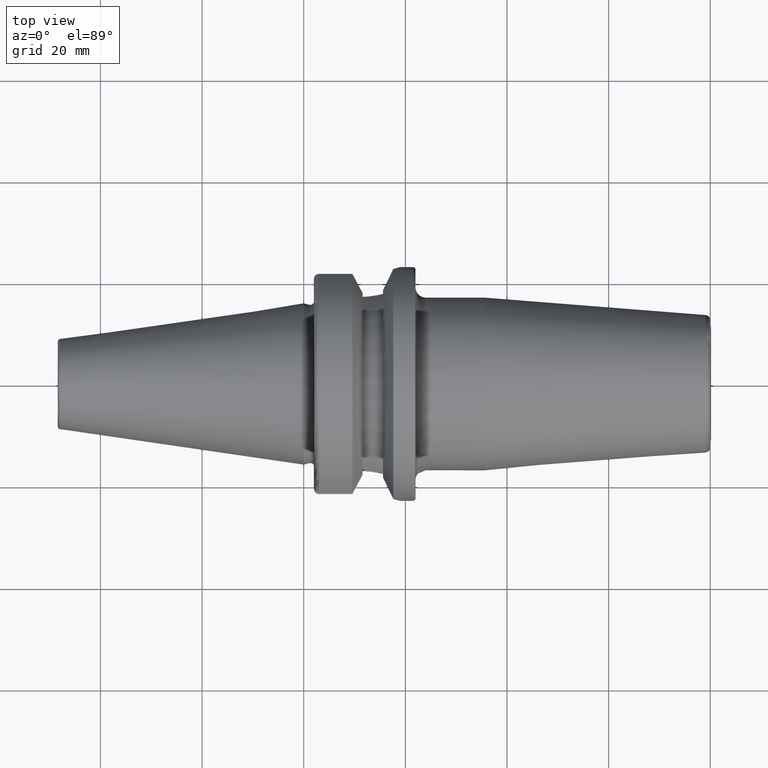
[diagram: clean part render]
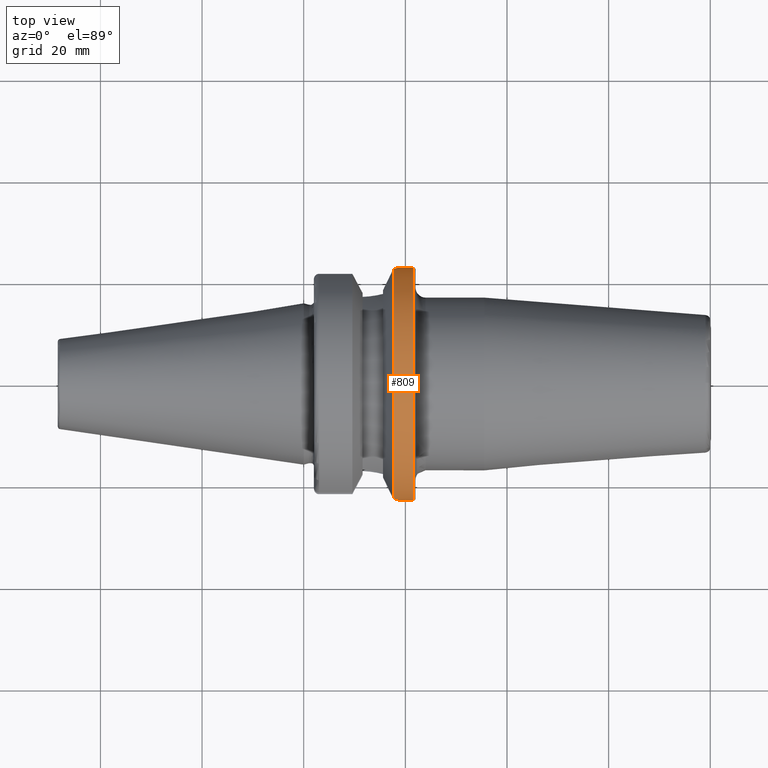
[diagram: same view with one face highlighted and labeled with its STEP entity id]
A machine part, top view. The second image highlights one B-rep face of the part: STEP entity #809.
In plain terms, the highlighted cylindrical surface (bore or boss wall) has radius 23 mm, axis along (1, 0, 0).
Its self-contained STEP definition (entity closure, byte-faithful):
#22=B_SPLINE_CURVE_WITH_KNOTS('',3,(#1325,#1326,#1327,#1328,#1329,#1330),
 .UNSPECIFIED.,.F.,.F.,(4,2,4),(1.22422978521585,1.53019992929475,1.68242086035696),
 .UNSPECIFIED.);
#23=B_SPLINE_CURVE_WITH_KNOTS('',3,(#1332,#1333,#1334,#1335,#1336,#1337),
 .UNSPECIFIED.,.F.,.F.,(4,2,4),(0.766038710074736,0.918259641136944,1.22422978521585),
 .UNSPECIFIED.);
#29=B_SPLINE_CURVE_WITH_KNOTS('',3,(#1418,#1419,#1420,#1421,#1422,#1423,
#1424,#1425,#1426,#1427),.UNSPECIFIED.,.F.,.F.,(4,2,2,2,4),(3.21449828050643,
3.36671921156864,3.67268935564754,3.97865949972644,4.13088043078865),
 .UNSPECIFIED.);
#77=CYLINDRICAL_SURFACE('',#905,23.);
#104=FACE_OUTER_BOUND('',#158,.T.);
#158=EDGE_LOOP('',(#623,#624,#625,#626,#627,#628,#629,#630,#631));
#213=LINE('',#1414,#253);
#253=VECTOR('',#1082,23.);
#296=CIRCLE('',#906,23.);
#297=CIRCLE('',#907,23.);
#298=CIRCLE('',#908,23.);
#299=CIRCLE('',#909,23.);
#357=VERTEX_POINT('',#1317);
#358=VERTEX_POINT('',#1324);
#359=VERTEX_POINT('',#1331);
#375=VERTEX_POINT('',#1411);
#376=VERTEX_POINT('',#1412);
#377=VERTEX_POINT('',#1415);
#378=VERTEX_POINT('',#1417);
#447=EDGE_CURVE('',#358,#357,#22,.T.);
#448=EDGE_CURVE('',#359,#358,#23,.T.);
#468=EDGE_CURVE('',#375,#376,#296,.T.);
#469=EDGE_CURVE('',#375,#358,#213,.T.);
#470=EDGE_CURVE('',#357,#377,#297,.T.);
#471=EDGE_CURVE('',#377,#378,#29,.T.);
#472=EDGE_CURVE('',#378,#359,#298,.T.);
#473=EDGE_CURVE('',#376,#375,#299,.T.);
#623=ORIENTED_EDGE('',*,*,#468,.F.);
#624=ORIENTED_EDGE('',*,*,#469,.T.);
#625=ORIENTED_EDGE('',*,*,#447,.T.);
#626=ORIENTED_EDGE('',*,*,#470,.T.);
#627=ORIENTED_EDGE('',*,*,#471,.T.);
#628=ORIENTED_EDGE('',*,*,#472,.T.);
#629=ORIENTED_EDGE('',*,*,#448,.T.);
#630=ORIENTED_EDGE('',*,*,#469,.F.);
#631=ORIENTED_EDGE('',*,*,#473,.F.);
#809=ADVANCED_FACE('',(#104),#77,.T.);
#905=AXIS2_PLACEMENT_3D('',#1410,#1078,#1079);
#906=AXIS2_PLACEMENT_3D('',#1413,#1080,#1081);
#907=AXIS2_PLACEMENT_3D('',#1416,#1083,#1084);
#908=AXIS2_PLACEMENT_3D('',#1428,#1085,#1086);
#909=AXIS2_PLACEMENT_3D('',#1429,#1087,#1088);
#1078=DIRECTION('center_axis',(1.,1.62798202122572E-21,0.));
#1079=DIRECTION('ref_axis',(0.,1.,0.));
#1080=DIRECTION('center_axis',(1.,1.62798202122572E-21,0.));
#1081=DIRECTION('ref_axis',(0.,0.,-1.));
#1082=DIRECTION('',(-1.,-1.62798202122572E-21,0.));
#1083=DIRECTION('center_axis',(1.,1.62798202122572E-21,0.));
#1084=DIRECTION('ref_axis',(0.,0.,-1.));
#1085=DIRECTION('center_axis',(1.,1.62798202122572E-21,0.));
#1086=DIRECTION('ref_axis',(0.,0.,-1.));
#1087=DIRECTION('center_axis',(1.,1.62798202122572E-21,0.));
#1088=DIRECTION('ref_axis',(0.,0.,-1.));
#1317=CARTESIAN_POINT('',(17.6299409595063,-22.5570191120744,-4.49231441213885));
#1324=CARTESIAN_POINT('',(19.,-23.,-2.10223320941018E-15));
#1325=CARTESIAN_POINT('Ctrl Pts',(19.,-23.,-1.38777878078145E-15));
#1326=CARTESIAN_POINT('Ctrl Pts',(19.,-23.,-1.01990048026301));
#1327=CARTESIAN_POINT('Ctrl Pts',(18.7944172124482,-22.9255444052516,-2.10203503507381));
#1328=CARTESIAN_POINT('Ctrl Pts',(18.177239764242,-22.7242805076598,-3.58529925507118));
#1329=CARTESIAN_POINT('Ctrl Pts',(17.9228644767949,-22.6437642529734,-4.05674565589789));
#1330=CARTESIAN_POINT('Ctrl Pts',(17.6299409595063,-22.5570191120744,-4.49231441213885));
#1331=CARTESIAN_POINT('',(17.6299409595063,-22.5570191120744,4.49231441213885));
#1332=CARTESIAN_POINT('Ctrl Pts',(17.6299409595063,-22.5570191120744,4.49231441213885));
#1333=CARTESIAN_POINT('Ctrl Pts',(17.9228644767949,-22.6437642529734,4.05674565589789));
#1334=CARTESIAN_POINT('Ctrl Pts',(18.177239764242,-22.7242805076598,3.58529925507118));
#1335=CARTESIAN_POINT('Ctrl Pts',(18.7944172124482,-22.9255444052516,2.10203503507381));
#1336=CARTESIAN_POINT('Ctrl Pts',(19.,-23.,1.01990048026301));
#1337=CARTESIAN_POINT('Ctrl Pts',(19.,-23.,-1.38777878078145E-15));
#1410=CARTESIAN_POINT('Origin',(19.5649704797531,2.08176742104803E-15,0.));
#1411=CARTESIAN_POINT('',(21.5,-23.,-2.81668763803891E-15));
#1412=CARTESIAN_POINT('',(21.5,-7.34917066797608E-16,23.));
#1413=CARTESIAN_POINT('Origin',(21.5,2.0817705712413E-15,0.));
#1414=CARTESIAN_POINT('',(19.5649704797531,-23.,-2.81668763803891E-15));
#1415=CARTESIAN_POINT('',(17.6299409595063,22.5570191120744,-4.49231441213885));
#1416=CARTESIAN_POINT('Origin',(17.6299409595063,2.08176427085476E-15,0.));
#1417=CARTESIAN_POINT('',(17.6299409595063,22.5570191120744,4.49231441213885));
#1418=CARTESIAN_POINT('Ctrl Pts',(17.6299409595063,22.5570191120744,-4.49231441213885));
#1419=CARTESIAN_POINT('Ctrl Pts',(17.9228644767949,22.6437642529734,-4.05674565589788));
#1420=CARTESIAN_POINT('Ctrl Pts',(18.177239764242,22.7242805076598,-3.58529925507119));
#1421=CARTESIAN_POINT('Ctrl Pts',(18.7944172124482,22.9255444052516,-2.10203503507382));
#1422=CARTESIAN_POINT('Ctrl Pts',(19.,23.,-1.01990048026301));
#1423=CARTESIAN_POINT('Ctrl Pts',(19.,23.,1.01990048026301));
#1424=CARTESIAN_POINT('Ctrl Pts',(18.7944172124482,22.9255444052516,2.10203503507381));
#1425=CARTESIAN_POINT('Ctrl Pts',(18.177239764242,22.7242805076598,3.58529925507118));
#1426=CARTESIAN_POINT('Ctrl Pts',(17.9228644767949,22.6437642529734,4.05674565589789));
#1427=CARTESIAN_POINT('Ctrl Pts',(17.6299409595063,22.5570191120744,4.49231441213885));
#1428=CARTESIAN_POINT('Origin',(17.6299409595063,2.08176427085476E-15,0.));
#1429=CARTESIAN_POINT('Origin',(21.5,2.0817705712413E-15,0.));